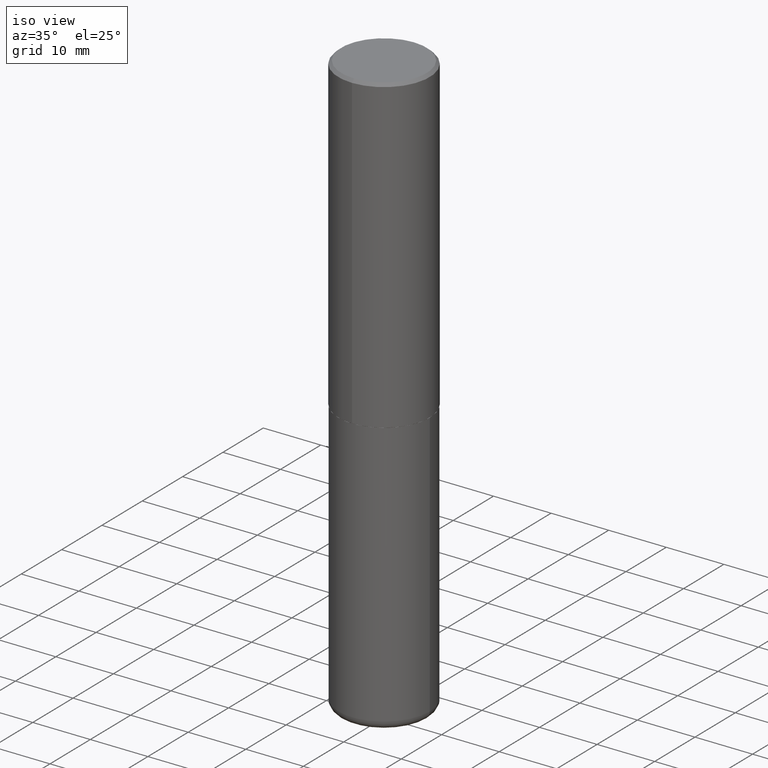
[diagram: clean part render]
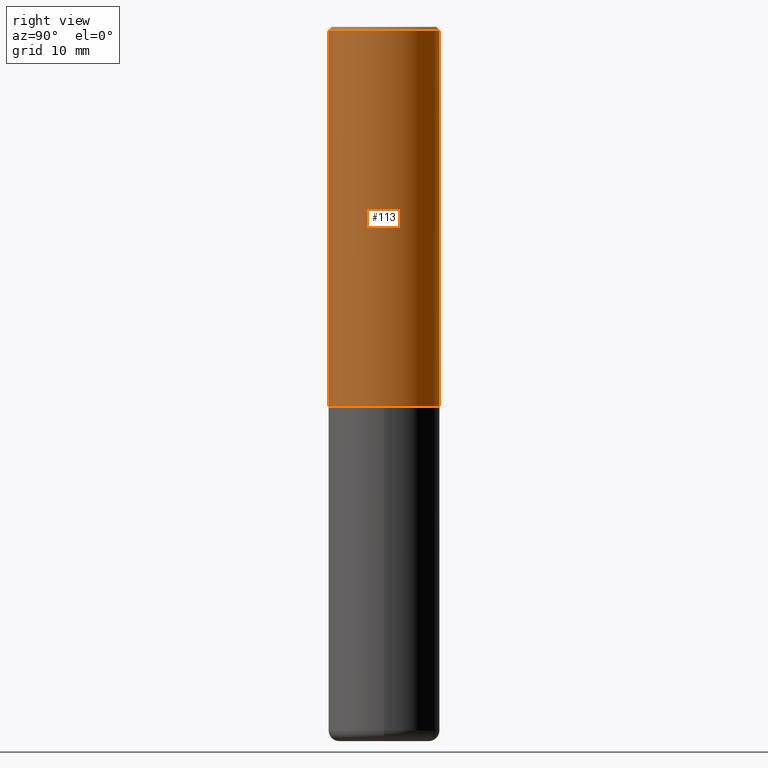
[diagram: tour spotlight — one face highlighted and labeled with its STEP entity id]
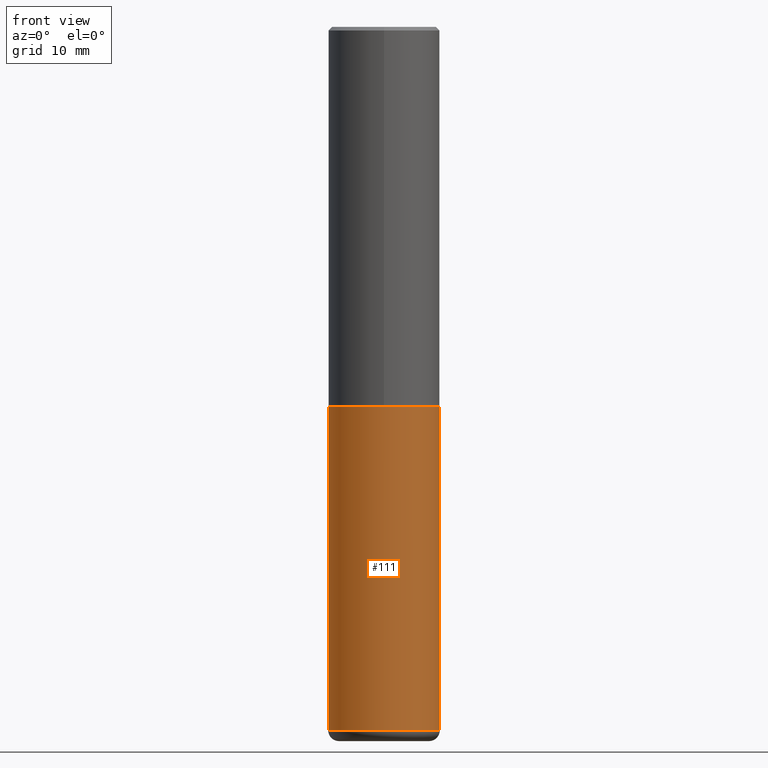
[diagram: tour spotlight — one face highlighted and labeled with its STEP entity id]
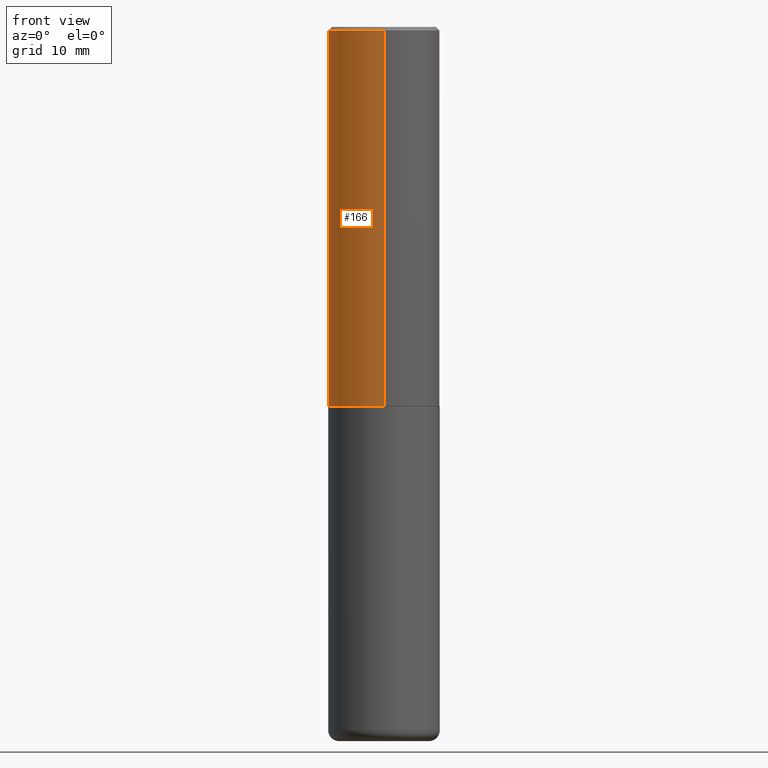
[diagram: tour spotlight — one face highlighted and labeled with its STEP entity id]
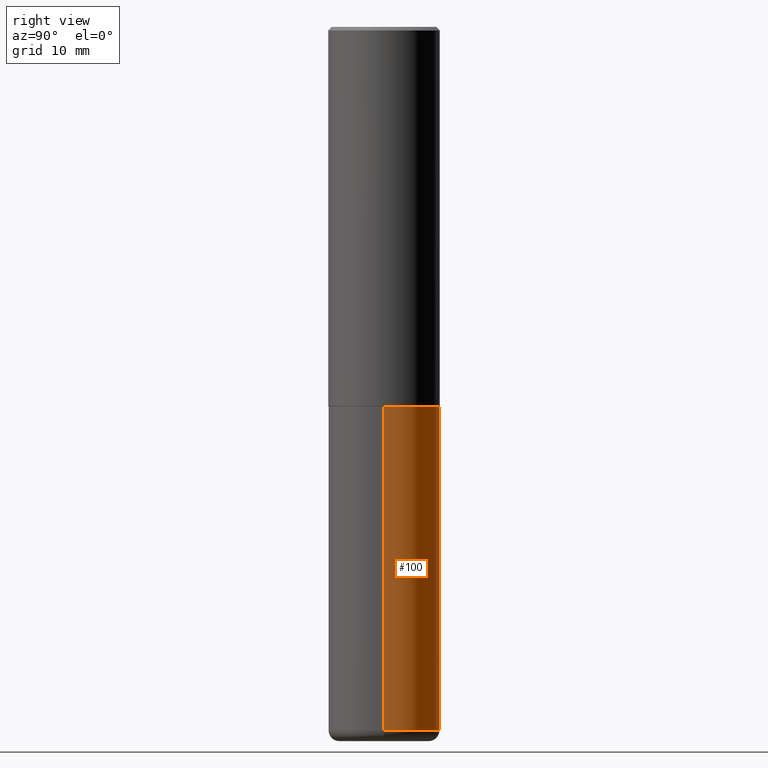
[diagram: tour spotlight — one face highlighted and labeled with its STEP entity id]
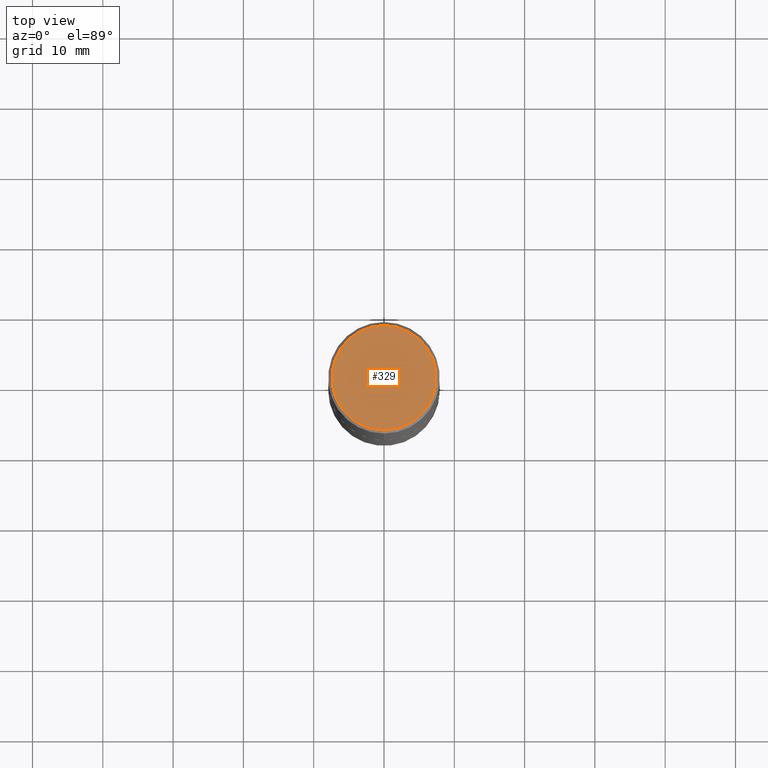
[diagram: tour spotlight — one face highlighted and labeled with its STEP entity id]
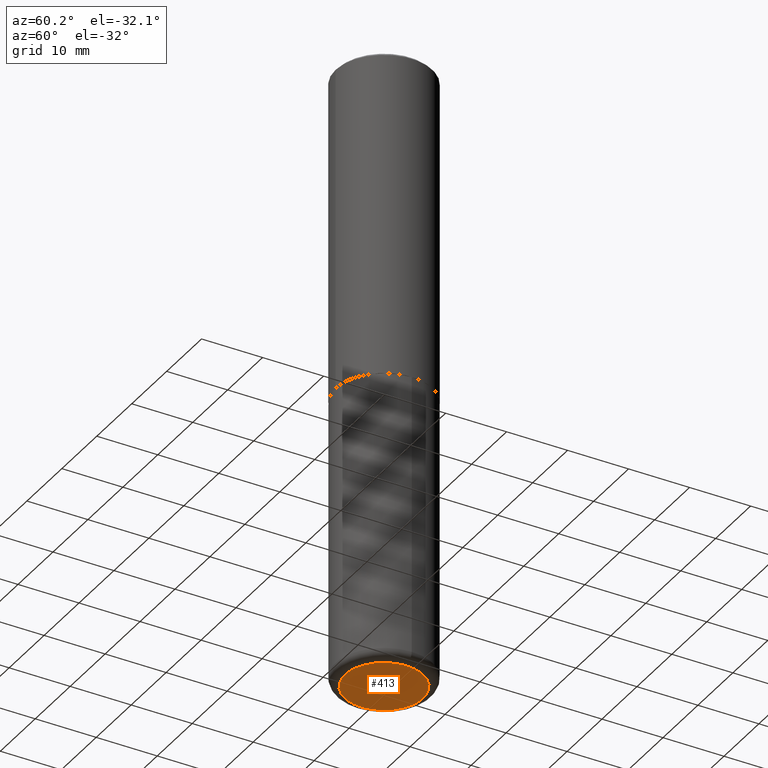
[diagram: tour spotlight — one face highlighted and labeled with its STEP entity id]
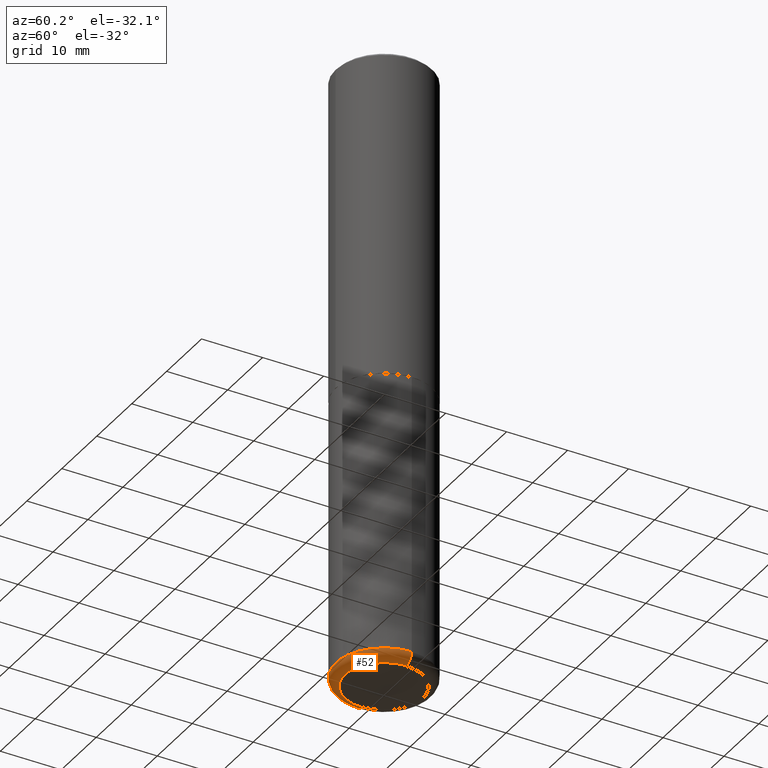
[diagram: tour spotlight — one face highlighted and labeled with its STEP entity id]
A machine part: a face-by-face anatomy tour. The part has 14 B-rep faces; the first image is the clean iso view, then the 7 largest visible faces are spotlighted one at a time (largest first), each with its STEP entity span.

Face 1 — right view, entity #113. In plain terms, the highlighted cylindrical surface (partial cylindrical patch) has radius 7.9375 mm, axis along (-0, 0, 1).
Definition (entity closure, byte-faithful):
#4 = LINE ( 'NONE', #130, #134 ) ;
#7 = CIRCLE ( 'NONE', #257, 0.3125000000000002776 ) ;
#23 = VECTOR ( 'NONE', #154, 39.37007874015748143 ) ;
#47 = ORIENTED_EDGE ( 'NONE', *, *, #205, .F. ) ;
#54 = EDGE_CURVE ( 'NONE', #137, #332, #7, .T. ) ;
#67 = CARTESIAN_POINT ( 'NONE',  ( 4.889704863452922148E-31, -6.984728044299695791E-17, -0.02000000000000006981 ) ) ;
#76 = VERTEX_POINT ( 'NONE', #341 ) ;
#78 = CARTESIAN_POINT ( 'NONE',  ( -2.182175836776908254E-15, -0.3125000000000077161, -2.123999999999998334 ) ) ;
#84 = DIRECTION ( 'NONE',  ( -2.444852431726452894E-29, 3.492364022149836358E-15, 1.000000000000000000 ) ) ;
#108 = CARTESIAN_POINT ( 'NONE',  ( 0.000000000000000000, 0.000000000000000000, 0.000000000000000000 ) ) ;
#113 = ADVANCED_FACE ( 'NONE', ( #200 ), #236, .T. ) ;
#130 = CARTESIAN_POINT ( 'NONE',  ( 2.220446049250313475E-15, 0.3125000000000001665, -1.091363756921824478E-15 ) ) ;
#134 = VECTOR ( 'NONE', #297, 39.37007874015748143 ) ;
#137 = VERTEX_POINT ( 'NONE', #78 ) ;
#146 = CARTESIAN_POINT ( 'NONE',  ( 2.220446049250340297E-15, 0.3124999999999928391, -2.124000000000000554 ) ) ;
#154 = DIRECTION ( 'NONE',  ( -2.444852431726452614E-29, 3.492364022149836358E-15, 1.000000000000000000 ) ) ;
#161 = CARTESIAN_POINT ( 'NONE',  ( 5.192866564986985411E-29, -7.417781183046251262E-15, -2.123999999999999666 ) ) ;
#186 = CARTESIAN_POINT ( 'NONE',  ( -2.143905624303602824E-15, -0.3125000000000000555, -0.01999999999999897693 ) ) ;
#190 = EDGE_LOOP ( 'NONE', ( #384, #258, #47, #396 ) ) ;
#199 = DIRECTION ( 'NONE',  ( -6.982962677686265922E-15, -1.000000000000000000, 3.496765431890253764E-15 ) ) ;
#200 = FACE_OUTER_BOUND ( 'NONE', #190, .T. ) ;
#205 = EDGE_CURVE ( 'NONE', #321, #76, #317, .T. ) ;
#236 = CYLINDRICAL_SURFACE ( 'NONE', #392, 0.3125000000000001665 ) ;
#241 = EDGE_CURVE ( 'NONE', #137, #321, #312, .T. ) ;
#249 = DIRECTION ( 'NONE',  ( -6.982962677686265133E-15, -1.000000000000000000, 3.496765431890256920E-15 ) ) ;
#257 = AXIS2_PLACEMENT_3D ( 'NONE', #161, #84, #199 ) ;
#258 = ORIENTED_EDGE ( 'NONE', *, *, #398, .T. ) ;
#274 = AXIS2_PLACEMENT_3D ( 'NONE', #67, #383, #249 ) ;
#279 = DIRECTION ( 'NONE',  ( -6.982962677686265133E-15, -1.000000000000000000, 3.492364022149836358E-15 ) ) ;
#297 = DIRECTION ( 'NONE',  ( -2.444852431726452614E-29, 3.492364022149836358E-15, 1.000000000000000000 ) ) ;
#312 = LINE ( 'NONE', #319, #23 ) ;
#317 = CIRCLE ( 'NONE', #274, 0.3125000000000000000 ) ;
#319 = CARTESIAN_POINT ( 'NONE',  ( -2.182175836776959136E-15, -0.3125000000000001665, 1.091363756921824478E-15 ) ) ;
#321 = VERTEX_POINT ( 'NONE', #186 ) ;
#332 = VERTEX_POINT ( 'NONE', #146 ) ;
#341 = CARTESIAN_POINT ( 'NONE',  ( 2.182175836776958741E-15, 0.3124999999999999445, -0.02000000000000116268 ) ) ;
#365 = DIRECTION ( 'NONE',  ( -2.444852431726452894E-29, 3.492364022149836358E-15, 1.000000000000000000 ) ) ;
#383 = DIRECTION ( 'NONE',  ( -2.444852431726452894E-29, 3.492364022149836358E-15, 1.000000000000000000 ) ) ;
#384 = ORIENTED_EDGE ( 'NONE', *, *, #54, .T. ) ;
#392 = AXIS2_PLACEMENT_3D ( 'NONE', #108, #365, #279 ) ;
#396 = ORIENTED_EDGE ( 'NONE', *, *, #241, .F. ) ;
#398 = EDGE_CURVE ( 'NONE', #332, #76, #4, .T. ) ;

Face 2 — front view, entity #111. In plain terms, the highlighted cylindrical surface (partial cylindrical patch) has radius 7.9375 mm, axis along (-0, 0, 1).
Definition (entity closure, byte-faithful):
#19 = DIRECTION ( 'NONE',  ( -2.445468806185136597E-29, 3.491481338843145583E-15, 1.000000000000000000 ) ) ;
#21 = DIRECTION ( 'NONE',  ( -2.445468806185136597E-29, 3.491481338843145583E-15, 1.000000000000000000 ) ) ;
#35 = DIRECTION ( 'NONE',  ( -2.445468806185136877E-29, 3.491481338843145188E-15, 1.000000000000000000 ) ) ;
#41 = ORIENTED_EDGE ( 'NONE', *, *, #339, .T. ) ;
#45 = VERTEX_POINT ( 'NONE', #358 ) ;
#59 = VECTOR ( 'NONE', #375, 39.37007874015748143 ) ;
#62 = CARTESIAN_POINT ( 'NONE',  ( -0.3125000000000001665, -1.153599042579167936E-14, -3.939999999999999947 ) ) ;
#70 = EDGE_CURVE ( 'NONE', #230, #45, #195, .T. ) ;
#79 = AXIS2_PLACEMENT_3D ( 'NONE', #114, #19, #308 ) ;
#92 = LINE ( 'NONE', #418, #59 ) ;
#97 = ORIENTED_EDGE ( 'NONE', *, *, #359, .F. ) ;
#111 = ADVANCED_FACE ( 'NONE', ( #140 ), #300, .T. ) ;
#112 = CARTESIAN_POINT ( 'NONE',  ( 9.635147096369438236E-29, -1.375643647504199401E-14, -3.939999999999999947 ) ) ;
#114 = CARTESIAN_POINT ( 'NONE',  ( 0.000000000000000000, 0.000000000000000000, 0.000000000000000000 ) ) ;
#121 = LINE ( 'NONE', #185, #382 ) ;
#133 = VERTEX_POINT ( 'NONE', #411 ) ;
#140 = FACE_OUTER_BOUND ( 'NONE', #416, .T. ) ;
#147 = ORIENTED_EDGE ( 'NONE', *, *, #70, .T. ) ;
#162 = AXIS2_PLACEMENT_3D ( 'NONE', #330, #197, #253 ) ;
#173 = AXIS2_PLACEMENT_3D ( 'NONE', #112, #21, #231 ) ;
#185 = CARTESIAN_POINT ( 'NONE',  ( 0.3125000000000000000, -2.182175836776958347E-15, 1.523805242436230075E-29 ) ) ;
#187 = ORIENTED_EDGE ( 'NONE', *, *, #225, .F. ) ;
#195 = CIRCLE ( 'NONE', #173, 0.3125000000000000000 ) ;
#197 = DIRECTION ( 'NONE',  ( -2.445468806185136597E-29, 3.491481338843145583E-15, 1.000000000000000000 ) ) ;
#225 = EDGE_CURVE ( 'NONE', #230, #400, #92, .T. ) ;
#230 = VERTEX_POINT ( 'NONE', #62 ) ;
#231 = DIRECTION ( 'NONE',  ( 1.000000000000000000, -6.982962677686269077E-15, 0.000000000000000000 ) ) ;
#252 = CIRCLE ( 'NONE', #162, 0.3125000000000000000 ) ;
#253 = DIRECTION ( 'NONE',  ( 1.000000000000000000, -6.982962677686265133E-15, 0.000000000000000000 ) ) ;
#300 = CYLINDRICAL_SURFACE ( 'NONE', #79, 0.3125000000000000000 ) ;
#308 = DIRECTION ( 'NONE',  ( 1.000000000000000000, -6.982962677686266711E-15, 4.876176775795936353E-29 ) ) ;
#330 = CARTESIAN_POINT ( 'NONE',  ( 5.196621213143414147E-29, -7.419397845041682046E-15, -2.124999999999999556 ) ) ;
#339 = EDGE_CURVE ( 'NONE', #45, #133, #121, .T. ) ;
#356 = CARTESIAN_POINT ( 'NONE',  ( -0.3125000000000000000, -8.367471110791524949E-15, -2.124999999999999556 ) ) ;
#358 = CARTESIAN_POINT ( 'NONE',  ( 0.3125000000000001665, -1.593861231181895394E-14, -3.939999999999999947 ) ) ;
#359 = EDGE_CURVE ( 'NONE', #400, #133, #252, .T. ) ;
#375 = DIRECTION ( 'NONE',  ( -2.445468806185136877E-29, 3.491481338843145188E-15, 1.000000000000000000 ) ) ;
#382 = VECTOR ( 'NONE', #35, 39.37007874015748143 ) ;
#400 = VERTEX_POINT ( 'NONE', #356 ) ;
#411 = CARTESIAN_POINT ( 'NONE',  ( 0.3125000000000000000, -9.601573681818640393E-15, -2.124999999999999556 ) ) ;
#416 = EDGE_LOOP ( 'NONE', ( #187, #147, #41, #97 ) ) ;
#418 = CARTESIAN_POINT ( 'NONE',  ( -0.3125000000000000000, 2.220446049250313081E-15, -1.537167215704658232E-29 ) ) ;

Face 3 — front view, entity #166. In plain terms, the highlighted cylindrical surface (partial cylindrical patch) has radius 7.9375 mm, axis along (-0, 0, 1).
Definition (entity closure, byte-faithful):
#4 = LINE ( 'NONE', #130, #134 ) ;
#10 = EDGE_CURVE ( 'NONE', #76, #321, #50, .T. ) ;
#23 = VECTOR ( 'NONE', #154, 39.37007874015748143 ) ;
#50 = CIRCLE ( 'NONE', #283, 0.3125000000000000000 ) ;
#53 = DIRECTION ( 'NONE',  ( -6.982962677686265133E-15, -1.000000000000000000, 3.492364022149836358E-15 ) ) ;
#76 = VERTEX_POINT ( 'NONE', #341 ) ;
#78 = CARTESIAN_POINT ( 'NONE',  ( -2.182175836776908254E-15, -0.3125000000000077161, -2.123999999999998334 ) ) ;
#80 = CYLINDRICAL_SURFACE ( 'NONE', #244, 0.3125000000000001665 ) ;
#96 = ORIENTED_EDGE ( 'NONE', *, *, #241, .T. ) ;
#99 = CARTESIAN_POINT ( 'NONE',  ( 4.889704863452922148E-31, -6.984728044299695791E-17, -0.02000000000000006981 ) ) ;
#128 = CIRCLE ( 'NONE', #310, 0.3125000000000002776 ) ;
#130 = CARTESIAN_POINT ( 'NONE',  ( 2.220446049250313475E-15, 0.3125000000000001665, -1.091363756921824478E-15 ) ) ;
#134 = VECTOR ( 'NONE', #297, 39.37007874015748143 ) ;
#135 = DIRECTION ( 'NONE',  ( -2.444852431726452894E-29, 3.492364022149836358E-15, 1.000000000000000000 ) ) ;
#137 = VERTEX_POINT ( 'NONE', #78 ) ;
#138 = ORIENTED_EDGE ( 'NONE', *, *, #398, .F. ) ;
#146 = CARTESIAN_POINT ( 'NONE',  ( 2.220446049250340297E-15, 0.3124999999999928391, -2.124000000000000554 ) ) ;
#154 = DIRECTION ( 'NONE',  ( -2.444852431726452614E-29, 3.492364022149836358E-15, 1.000000000000000000 ) ) ;
#164 = ORIENTED_EDGE ( 'NONE', *, *, #10, .F. ) ;
#166 = ADVANCED_FACE ( 'NONE', ( #168 ), #80, .T. ) ;
#168 = FACE_OUTER_BOUND ( 'NONE', #376, .T. ) ;
#186 = CARTESIAN_POINT ( 'NONE',  ( -2.143905624303602824E-15, -0.3125000000000000555, -0.01999999999999897693 ) ) ;
#188 = DIRECTION ( 'NONE',  ( -2.444852431726452894E-29, 3.492364022149836358E-15, 1.000000000000000000 ) ) ;
#223 = DIRECTION ( 'NONE',  ( -6.982962677686265133E-15, -1.000000000000000000, 3.496765431890256920E-15 ) ) ;
#227 = ORIENTED_EDGE ( 'NONE', *, *, #364, .T. ) ;
#241 = EDGE_CURVE ( 'NONE', #137, #321, #312, .T. ) ;
#244 = AXIS2_PLACEMENT_3D ( 'NONE', #337, #340, #53 ) ;
#283 = AXIS2_PLACEMENT_3D ( 'NONE', #99, #188, #223 ) ;
#297 = DIRECTION ( 'NONE',  ( -2.444852431726452614E-29, 3.492364022149836358E-15, 1.000000000000000000 ) ) ;
#310 = AXIS2_PLACEMENT_3D ( 'NONE', #387, #135, #327 ) ;
#312 = LINE ( 'NONE', #319, #23 ) ;
#319 = CARTESIAN_POINT ( 'NONE',  ( -2.182175836776959136E-15, -0.3125000000000001665, 1.091363756921824478E-15 ) ) ;
#321 = VERTEX_POINT ( 'NONE', #186 ) ;
#327 = DIRECTION ( 'NONE',  ( -6.982962677686265922E-15, -1.000000000000000000, 3.496765431890253764E-15 ) ) ;
#332 = VERTEX_POINT ( 'NONE', #146 ) ;
#337 = CARTESIAN_POINT ( 'NONE',  ( 0.000000000000000000, 0.000000000000000000, 0.000000000000000000 ) ) ;
#340 = DIRECTION ( 'NONE',  ( -2.444852431726452894E-29, 3.492364022149836358E-15, 1.000000000000000000 ) ) ;
#341 = CARTESIAN_POINT ( 'NONE',  ( 2.182175836776958741E-15, 0.3124999999999999445, -0.02000000000000116268 ) ) ;
#364 = EDGE_CURVE ( 'NONE', #332, #137, #128, .T. ) ;
#376 = EDGE_LOOP ( 'NONE', ( #138, #227, #96, #164 ) ) ;
#387 = CARTESIAN_POINT ( 'NONE',  ( 5.192866564986985411E-29, -7.417781183046251262E-15, -2.123999999999999666 ) ) ;
#398 = EDGE_CURVE ( 'NONE', #332, #76, #4, .T. ) ;

Face 4 — right view, entity #100. In plain terms, the highlighted cylindrical surface (partial cylindrical patch) has radius 7.9375 mm, axis along (-0, 0, 1).
Definition (entity closure, byte-faithful):
#6 = DIRECTION ( 'NONE',  ( 1.000000000000000000, -6.982962677686265133E-15, 0.000000000000000000 ) ) ;
#31 = AXIS2_PLACEMENT_3D ( 'NONE', #269, #142, #145 ) ;
#35 = DIRECTION ( 'NONE',  ( -2.445468806185136877E-29, 3.491481338843145188E-15, 1.000000000000000000 ) ) ;
#44 = EDGE_CURVE ( 'NONE', #133, #400, #228, .T. ) ;
#45 = VERTEX_POINT ( 'NONE', #358 ) ;
#59 = VECTOR ( 'NONE', #375, 39.37007874015748143 ) ;
#62 = CARTESIAN_POINT ( 'NONE',  ( -0.3125000000000001665, -1.153599042579167936E-14, -3.939999999999999947 ) ) ;
#75 = CIRCLE ( 'NONE', #156, 0.3125000000000000000 ) ;
#86 = AXIS2_PLACEMENT_3D ( 'NONE', #255, #389, #6 ) ;
#92 = LINE ( 'NONE', #418, #59 ) ;
#100 = ADVANCED_FACE ( 'NONE', ( #171 ), #275, .T. ) ;
#121 = LINE ( 'NONE', #185, #382 ) ;
#123 = DIRECTION ( 'NONE',  ( 1.000000000000000000, -6.982962677686269077E-15, 0.000000000000000000 ) ) ;
#133 = VERTEX_POINT ( 'NONE', #411 ) ;
#142 = DIRECTION ( 'NONE',  ( -2.445468806185136597E-29, 3.491481338843145583E-15, 1.000000000000000000 ) ) ;
#145 = DIRECTION ( 'NONE',  ( 1.000000000000000000, -6.982962677686266711E-15, 4.876176775795936353E-29 ) ) ;
#151 = DIRECTION ( 'NONE',  ( -2.445468806185136597E-29, 3.491481338843145583E-15, 1.000000000000000000 ) ) ;
#153 = EDGE_LOOP ( 'NONE', ( #250, #357, #351, #217 ) ) ;
#156 = AXIS2_PLACEMENT_3D ( 'NONE', #346, #151, #123 ) ;
#171 = FACE_OUTER_BOUND ( 'NONE', #153, .T. ) ;
#185 = CARTESIAN_POINT ( 'NONE',  ( 0.3125000000000000000, -2.182175836776958347E-15, 1.523805242436230075E-29 ) ) ;
#217 = ORIENTED_EDGE ( 'NONE', *, *, #339, .F. ) ;
#225 = EDGE_CURVE ( 'NONE', #230, #400, #92, .T. ) ;
#228 = CIRCLE ( 'NONE', #86, 0.3125000000000000000 ) ;
#230 = VERTEX_POINT ( 'NONE', #62 ) ;
#250 = ORIENTED_EDGE ( 'NONE', *, *, #276, .T. ) ;
#255 = CARTESIAN_POINT ( 'NONE',  ( 5.196621213143414147E-29, -7.419397845041682046E-15, -2.124999999999999556 ) ) ;
#269 = CARTESIAN_POINT ( 'NONE',  ( 0.000000000000000000, 0.000000000000000000, 0.000000000000000000 ) ) ;
#275 = CYLINDRICAL_SURFACE ( 'NONE', #31, 0.3125000000000000000 ) ;
#276 = EDGE_CURVE ( 'NONE', #45, #230, #75, .T. ) ;
#339 = EDGE_CURVE ( 'NONE', #45, #133, #121, .T. ) ;
#346 = CARTESIAN_POINT ( 'NONE',  ( 9.635147096369438236E-29, -1.375643647504199401E-14, -3.939999999999999947 ) ) ;
#351 = ORIENTED_EDGE ( 'NONE', *, *, #44, .F. ) ;
#356 = CARTESIAN_POINT ( 'NONE',  ( -0.3125000000000000000, -8.367471110791524949E-15, -2.124999999999999556 ) ) ;
#357 = ORIENTED_EDGE ( 'NONE', *, *, #225, .T. ) ;
#358 = CARTESIAN_POINT ( 'NONE',  ( 0.3125000000000001665, -1.593861231181895394E-14, -3.939999999999999947 ) ) ;
#375 = DIRECTION ( 'NONE',  ( -2.445468806185136877E-29, 3.491481338843145188E-15, 1.000000000000000000 ) ) ;
#382 = VECTOR ( 'NONE', #35, 39.37007874015748143 ) ;
#389 = DIRECTION ( 'NONE',  ( -2.445468806185136597E-29, 3.491481338843145583E-15, 1.000000000000000000 ) ) ;
#400 = VERTEX_POINT ( 'NONE', #356 ) ;
#411 = CARTESIAN_POINT ( 'NONE',  ( 0.3125000000000000000, -9.601573681818640393E-15, -2.124999999999999556 ) ) ;
#418 = CARTESIAN_POINT ( 'NONE',  ( -0.3125000000000000000, 2.220446049250313081E-15, -1.537167215704658232E-29 ) ) ;

Face 5 — top view, entity #329. In plain terms, the highlighted planar face has unit normal (0, -0, -1).
Definition (entity closure, byte-faithful):
#2 = DIRECTION ( 'NONE',  ( 6.982962677686265922E-15, 1.000000000000000000, -3.492364022149836358E-15 ) ) ;
#5 = DIRECTION ( 'NONE',  ( -2.444852431726452894E-29, 3.492364022149836358E-15, 1.000000000000000000 ) ) ;
#14 = ORIENTED_EDGE ( 'NONE', *, *, #42, .T. ) ;
#38 = AXIS2_PLACEMENT_3D ( 'NONE', #406, #409, #366 ) ;
#42 = EDGE_CURVE ( 'NONE', #74, #68, #149, .T. ) ;
#66 = PLANE ( 'NONE',  #324 ) ;
#68 = VERTEX_POINT ( 'NONE', #172 ) ;
#74 = VERTEX_POINT ( 'NONE', #335 ) ;
#107 = EDGE_CURVE ( 'NONE', #68, #74, #208, .T. ) ;
#132 = DIRECTION ( 'NONE',  ( -6.982962677686265133E-15, -1.000000000000000000, 3.492364022149836753E-15 ) ) ;
#149 = CIRCLE ( 'NONE', #273, 0.2924999999999999822 ) ;
#172 = CARTESIAN_POINT ( 'NONE',  ( 2.112346210000095838E-15, 0.2924999999999999822, -1.012721266631419361E-15 ) ) ;
#208 = CIRCLE ( 'NONE', #38, 0.2924999999999999822 ) ;
#247 = FACE_OUTER_BOUND ( 'NONE', #313, .T. ) ;
#273 = AXIS2_PLACEMENT_3D ( 'NONE', #293, #5, #132 ) ;
#293 = CARTESIAN_POINT ( 'NONE',  ( -2.150299018297948745E-46, 3.071607443834507134E-32, 8.795209847407834549E-18 ) ) ;
#313 = EDGE_LOOP ( 'NONE', ( #355, #14 ) ) ;
#315 = CARTESIAN_POINT ( 'NONE',  ( 2.042516583223232540E-15, 0.2924999999999999822, -1.017118871555123169E-15 ) ) ;
#324 = AXIS2_PLACEMENT_3D ( 'NONE', #315, #345, #2 ) ;
#329 = ADVANCED_FACE ( 'NONE', ( #247 ), #66, .F. ) ;
#335 = CARTESIAN_POINT ( 'NONE',  ( -2.075300644325887493E-15, -0.2924999999999999822, 1.030311686326234990E-15 ) ) ;
#345 = DIRECTION ( 'NONE',  ( 2.444852431726452333E-29, -3.492364022149836358E-15, -1.000000000000000000 ) ) ;
#355 = ORIENTED_EDGE ( 'NONE', *, *, #107, .T. ) ;
#366 = DIRECTION ( 'NONE',  ( -6.982962677686265133E-15, -1.000000000000000000, 3.492364022149836753E-15 ) ) ;
#406 = CARTESIAN_POINT ( 'NONE',  ( -2.150299018297948745E-46, 3.071607443834507134E-32, 8.795209847407834549E-18 ) ) ;
#409 = DIRECTION ( 'NONE',  ( -2.444852431726452894E-29, 3.492364022149836358E-15, 1.000000000000000000 ) ) ;

Face 6 — auxiliary view, entity #413. In plain terms, the highlighted planar face has unit normal (0, -0, -1).
Definition (entity closure, byte-faithful):
#8 = CARTESIAN_POINT ( 'NONE',  ( -0.2525000000000000022, -1.185389768668500455E-14, -4.000000000000000888 ) ) ;
#13 = FACE_OUTER_BOUND ( 'NONE', #328, .T. ) ;
#17 = AXIS2_PLACEMENT_3D ( 'NONE', #336, #49, #403 ) ;
#49 = DIRECTION ( 'NONE',  ( -2.445468806185136597E-29, 3.491481338843145583E-15, 1.000000000000000000 ) ) ;
#77 = DIRECTION ( 'NONE',  ( 1.000000000000000000, -6.982962677686269866E-15, 0.000000000000000000 ) ) ;
#82 = DIRECTION ( 'NONE',  ( -2.445468806185136597E-29, 3.491481338843145583E-15, 1.000000000000000000 ) ) ;
#110 = CARTESIAN_POINT ( 'NONE',  ( 9.781875224740547508E-29, -1.396592535537258391E-14, -4.000000000000000888 ) ) ;
#139 = EDGE_CURVE ( 'NONE', #361, #194, #155, .T. ) ;
#155 = CIRCLE ( 'NONE', #264, 0.2525000000000000022 ) ;
#163 = EDGE_CURVE ( 'NONE', #194, #361, #323, .T. ) ;
#165 = ORIENTED_EDGE ( 'NONE', *, *, #163, .F. ) ;
#180 = DIRECTION ( 'NONE',  ( -1.000000000000000000, 6.982962677686265922E-15, -4.876176775795935793E-29 ) ) ;
#194 = VERTEX_POINT ( 'NONE', #284 ) ;
#198 = ORIENTED_EDGE ( 'NONE', *, *, #139, .F. ) ;
#212 = DIRECTION ( 'NONE',  ( 2.438088387897960049E-29, -3.491481338843145188E-15, -1.000000000000000000 ) ) ;
#216 = AXIS2_PLACEMENT_3D ( 'NONE', #314, #212, #180 ) ;
#264 = AXIS2_PLACEMENT_3D ( 'NONE', #110, #82, #77 ) ;
#284 = CARTESIAN_POINT ( 'NONE',  ( 0.2525000000000000022, -1.572912343148836720E-14, -4.000000000000000888 ) ) ;
#305 = PLANE ( 'NONE',  #216 ) ;
#314 = CARTESIAN_POINT ( 'NONE',  ( 3.737869654564020541E-29, -2.262128533529896139E-14, -4.000000000000000000 ) ) ;
#323 = CIRCLE ( 'NONE', #17, 0.2525000000000000022 ) ;
#328 = EDGE_LOOP ( 'NONE', ( #165, #198 ) ) ;
#336 = CARTESIAN_POINT ( 'NONE',  ( 9.781875224740547508E-29, -1.396592535537258391E-14, -4.000000000000000888 ) ) ;
#361 = VERTEX_POINT ( 'NONE', #8 ) ;
#403 = DIRECTION ( 'NONE',  ( 1.000000000000000000, -6.982962677686269866E-15, 0.000000000000000000 ) ) ;
#413 = ADVANCED_FACE ( 'NONE', ( #13 ), #305, .T. ) ;

Face 7 — auxiliary view, entity #52. In plain terms, the highlighted toroidal blend (fillet) surface has major radius 6.4135 mm and minor (blend) radius 1.524 mm.
Definition (entity closure, byte-faithful):
#8 = CARTESIAN_POINT ( 'NONE',  ( -0.2525000000000000022, -1.185389768668500455E-14, -4.000000000000000888 ) ) ;
#11 = CARTESIAN_POINT ( 'NONE',  ( 9.635147096369438236E-29, -1.375643647504199401E-14, -3.939999999999999947 ) ) ;
#21 = DIRECTION ( 'NONE',  ( -2.445468806185136597E-29, 3.491481338843145583E-15, 1.000000000000000000 ) ) ;
#36 = ORIENTED_EDGE ( 'NONE', *, *, #70, .F. ) ;
#43 = CARTESIAN_POINT ( 'NONE',  ( -0.2525000000000000022, -1.196231606724773985E-14, -3.939999999999999947 ) ) ;
#45 = VERTEX_POINT ( 'NONE', #358 ) ;
#52 = ADVANCED_FACE ( 'NONE', ( #331 ), #182, .T. ) ;
#62 = CARTESIAN_POINT ( 'NONE',  ( -0.3125000000000001665, -1.153599042579167936E-14, -3.939999999999999947 ) ) ;
#70 = EDGE_CURVE ( 'NONE', #230, #45, #195, .T. ) ;
#77 = DIRECTION ( 'NONE',  ( 1.000000000000000000, -6.982962677686269866E-15, 0.000000000000000000 ) ) ;
#82 = DIRECTION ( 'NONE',  ( -2.445468806185136597E-29, 3.491481338843145583E-15, 1.000000000000000000 ) ) ;
#110 = CARTESIAN_POINT ( 'NONE',  ( 9.781875224740547508E-29, -1.396592535537258391E-14, -4.000000000000000888 ) ) ;
#112 = CARTESIAN_POINT ( 'NONE',  ( 9.635147096369438236E-29, -1.375643647504199401E-14, -3.939999999999999947 ) ) ;
#124 = EDGE_LOOP ( 'NONE', ( #192, #388, #157, #36 ) ) ;
#139 = EDGE_CURVE ( 'NONE', #361, #194, #155, .T. ) ;
#150 = EDGE_CURVE ( 'NONE', #194, #45, #391, .T. ) ;
#155 = CIRCLE ( 'NONE', #264, 0.2525000000000000022 ) ;
#157 = ORIENTED_EDGE ( 'NONE', *, *, #150, .T. ) ;
#158 = DIRECTION ( 'NONE',  ( 7.105427357601001859E-15, 1.000000000000000000, -3.491481338843145583E-15 ) ) ;
#173 = AXIS2_PLACEMENT_3D ( 'NONE', #112, #21, #231 ) ;
#175 = AXIS2_PLACEMENT_3D ( 'NONE', #43, #158, #292 ) ;
#182 = TOROIDAL_SURFACE ( 'NONE', #251, 0.2525000000000000022, 0.06000000000000023370 ) ;
#192 = ORIENTED_EDGE ( 'NONE', *, *, #393, .F. ) ;
#194 = VERTEX_POINT ( 'NONE', #284 ) ;
#195 = CIRCLE ( 'NONE', #173, 0.3125000000000000000 ) ;
#201 = AXIS2_PLACEMENT_3D ( 'NONE', #367, #203, #204 ) ;
#203 = DIRECTION ( 'NONE',  ( -6.982962677686266711E-15, -1.000000000000000000, 3.491481338843145583E-15 ) ) ;
#204 = DIRECTION ( 'NONE',  ( 1.000000000000000000, -6.982962677686275388E-15, 0.000000000000000000 ) ) ;
#230 = VERTEX_POINT ( 'NONE', #62 ) ;
#231 = DIRECTION ( 'NONE',  ( 1.000000000000000000, -6.982962677686269077E-15, 0.000000000000000000 ) ) ;
#251 = AXIS2_PLACEMENT_3D ( 'NONE', #11, #371, #370 ) ;
#264 = AXIS2_PLACEMENT_3D ( 'NONE', #110, #82, #77 ) ;
#284 = CARTESIAN_POINT ( 'NONE',  ( 0.2525000000000000022, -1.572912343148836720E-14, -4.000000000000000888 ) ) ;
#292 = DIRECTION ( 'NONE',  ( -1.000000000000000000, 7.105427357600997914E-15, 0.000000000000000000 ) ) ;
#331 = FACE_OUTER_BOUND ( 'NONE', #124, .T. ) ;
#333 = CIRCLE ( 'NONE', #175, 0.06000000000000021289 ) ;
#358 = CARTESIAN_POINT ( 'NONE',  ( 0.3125000000000001665, -1.593861231181895394E-14, -3.939999999999999947 ) ) ;
#361 = VERTEX_POINT ( 'NONE', #8 ) ;
#367 = CARTESIAN_POINT ( 'NONE',  ( 0.2525000000000000022, -1.551963455115777730E-14, -3.939999999999999947 ) ) ;
#370 = DIRECTION ( 'NONE',  ( 1.000000000000000000, -6.982962677686264344E-15, 4.883557194083112340E-29 ) ) ;
#371 = DIRECTION ( 'NONE',  ( -2.445468806185136597E-29, 3.491481338843145583E-15, 1.000000000000000000 ) ) ;
#388 = ORIENTED_EDGE ( 'NONE', *, *, #139, .T. ) ;
#391 = CIRCLE ( 'NONE', #201, 0.06000000000000021289 ) ;
#393 = EDGE_CURVE ( 'NONE', #361, #230, #333, .T. ) ;